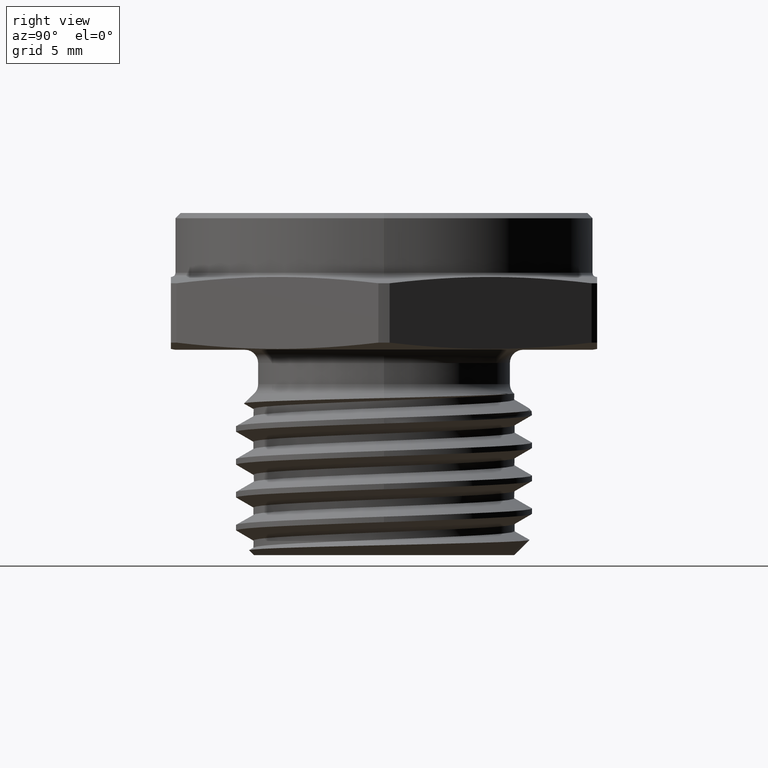
[diagram: clean part render]
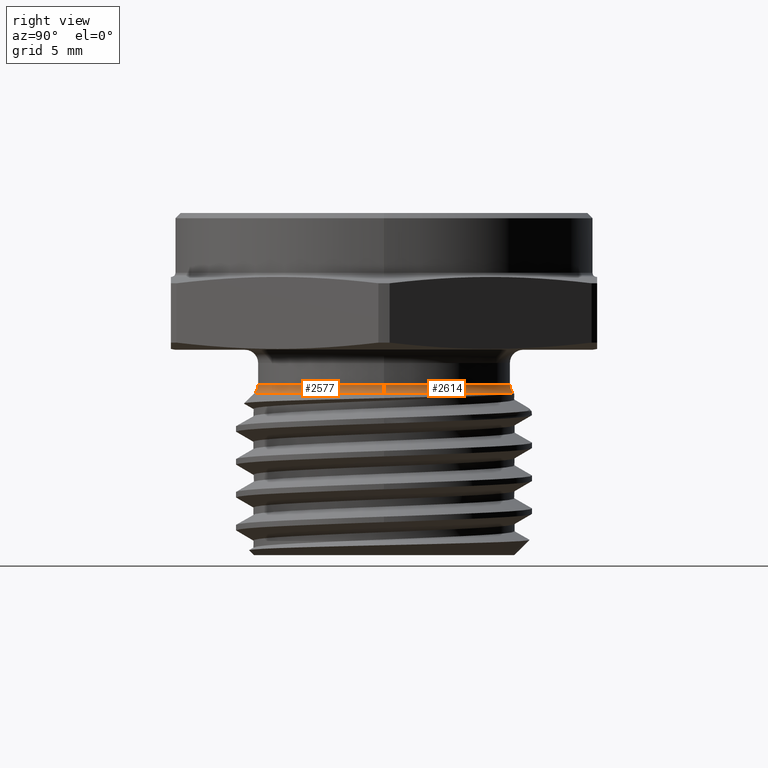
[diagram: same view with one multi-face feature highlighted, each face labeled with its STEP entity id]
A machine part, right view. The highlighted faces form ONE feature: a constant-radius fillet chain: 2 tangent blend faces with common blend radius 0.635 mm. The faces share edges in the B-rep.
Their STEP definitions:
[1] entity #2577 (Torus):
#247 = CARTESIAN_POINT ( 'NONE',  ( 0.0000000000000000000, 0.0000000000000000000, -0.06532233047033626800 ) ) ;
#248 = DIRECTION ( 'NONE',  ( -0.0000000000000000000, -0.0000000000000000000, 1.000000000000000000 ) ) ;
#249 = DIRECTION ( 'NONE',  ( 1.000000000000000000, 0.0000000000000000000, 0.0000000000000000000 ) ) ;
#251 = CARTESIAN_POINT ( 'NONE',  ( -0.2655000000000000100, 3.251437251736223000E-017, -0.06532233047033626800 ) ) ;
#252 = DIRECTION ( 'NONE',  ( 1.224646799147353200E-016, 1.000000000000000000, 0.0000000000000000000 ) ) ;
#253 = DIRECTION ( 'NONE',  ( -1.000000000000000000, 1.224646799147353200E-016, 0.0000000000000000000 ) ) ;
#254 = CARTESIAN_POINT ( 'NONE',  ( 0.0000000000000000000, 0.0000000000000000000, -0.08299999999999999000 ) ) ;
#255 = DIRECTION ( 'NONE',  ( -0.0000000000000000000, -0.0000000000000000000, 1.000000000000000000 ) ) ;
#256 = DIRECTION ( 'NONE',  ( 1.000000000000000000, 0.0000000000000000000, 0.0000000000000000000 ) ) ;
#258 = CARTESIAN_POINT ( 'NONE',  ( 0.2655000000000000100, 0.0000000000000000000, -0.06532233047033626800 ) ) ;
#259 = DIRECTION ( 'NONE',  ( 0.0000000000000000000, -1.000000000000000000, 0.0000000000000000000 ) ) ;
#260 = DIRECTION ( 'NONE',  ( 0.0000000000000000000, 0.0000000000000000000, -1.000000000000000000 ) ) ;
#322 = ORIENTED_EDGE ( 'NONE', *, *, #1204, .F. ) ;
#325 = ORIENTED_EDGE ( 'NONE', *, *, #1203, .T. ) ;
#356 = ORIENTED_EDGE ( 'NONE', *, *, #1202, .T. ) ;
#357 = ORIENTED_EDGE ( 'NONE', *, *, #1201, .F. ) ;
#635 = CIRCLE ( 'NONE', #913, 0.2404999999999999900 ) ;
#639 = CIRCLE ( 'NONE', #915, 0.2478223304703363900 ) ;
#641 = CIRCLE ( 'NONE', #914, 0.02499999999999997400 ) ;
#643 = CIRCLE ( 'NONE', #916, 0.02499999999999999100 ) ;
#703 = FACE_OUTER_BOUND ( 'NONE', #1290, .T. ) ;
#710 = TOROIDAL_SURFACE ( 'NONE', #951, 0.2655000000000000100, 0.02499999999999998400 ) ;
#913 = AXIS2_PLACEMENT_3D ( 'NONE', #247, #248, #249 ) ;
#914 = AXIS2_PLACEMENT_3D ( 'NONE', #251, #252, #253 ) ;
#915 = AXIS2_PLACEMENT_3D ( 'NONE', #254, #255, #256 ) ;
#916 = AXIS2_PLACEMENT_3D ( 'NONE', #258, #259, #260 ) ;
#951 = AXIS2_PLACEMENT_3D ( 'NONE', #1708, #1707, #1710 ) ;
#1201 = EDGE_CURVE ( 'NONE', #1314, #1343, #635, .T. ) ;
#1202 = EDGE_CURVE ( 'NONE', #1314, #1322, #641, .T. ) ;
#1203 = EDGE_CURVE ( 'NONE', #1322, #1373, #639, .T. ) ;
#1204 = EDGE_CURVE ( 'NONE', #1343, #1373, #643, .T. ) ;
#1290 = EDGE_LOOP ( 'NONE', ( #357, #356, #325, #322 ) ) ;
#1314 = VERTEX_POINT ( 'NONE', #1603 ) ;
#1322 = VERTEX_POINT ( 'NONE', #1605 ) ;
#1343 = VERTEX_POINT ( 'NONE', #1619 ) ;
#1373 = VERTEX_POINT ( 'NONE', #1631 ) ;
#1603 = CARTESIAN_POINT ( 'NONE',  ( -0.2404999999999999900, 2.990111894813367500E-017, -0.06532233047033626800 ) ) ;
#1605 = CARTESIAN_POINT ( 'NONE',  ( -0.2478223304703363900, 0.0000000000000000000, -0.08299999999999999000 ) ) ;
#1619 = CARTESIAN_POINT ( 'NONE',  ( 0.2404999999999999900, 0.0000000000000000000, -0.06532233047033626800 ) ) ;
#1631 = CARTESIAN_POINT ( 'NONE',  ( 0.2478223304703363900, 3.239633680139640600E-017, -0.08299999999999999000 ) ) ;
#1707 = DIRECTION ( 'NONE',  ( -0.0000000000000000000, -0.0000000000000000000, 1.000000000000000000 ) ) ;
#1708 = CARTESIAN_POINT ( 'NONE',  ( 0.0000000000000000000, 0.0000000000000000000, -0.06532233047033626800 ) ) ;
#1710 = DIRECTION ( 'NONE',  ( 1.000000000000000000, 0.0000000000000000000, 0.0000000000000000000 ) ) ;
#2577 = ADVANCED_FACE ( 'NONE', ( #703 ), #710, .F. ) ;
[2] entity #2614 (Torus):
#241 = CARTESIAN_POINT ( 'NONE',  ( 0.0000000000000000000, 0.0000000000000000000, -0.06532233047033626800 ) ) ;
#242 = DIRECTION ( 'NONE',  ( -0.0000000000000000000, -0.0000000000000000000, 1.000000000000000000 ) ) ;
#243 = DIRECTION ( 'NONE',  ( 1.000000000000000000, 0.0000000000000000000, 0.0000000000000000000 ) ) ;
#251 = CARTESIAN_POINT ( 'NONE',  ( -0.2655000000000000100, 3.251437251736223000E-017, -0.06532233047033626800 ) ) ;
#252 = DIRECTION ( 'NONE',  ( 1.224646799147353200E-016, 1.000000000000000000, 0.0000000000000000000 ) ) ;
#253 = DIRECTION ( 'NONE',  ( -1.000000000000000000, 1.224646799147353200E-016, 0.0000000000000000000 ) ) ;
#258 = CARTESIAN_POINT ( 'NONE',  ( 0.2655000000000000100, 0.0000000000000000000, -0.06532233047033626800 ) ) ;
#259 = DIRECTION ( 'NONE',  ( 0.0000000000000000000, -1.000000000000000000, 0.0000000000000000000 ) ) ;
#260 = DIRECTION ( 'NONE',  ( 0.0000000000000000000, 0.0000000000000000000, -1.000000000000000000 ) ) ;
#262 = CARTESIAN_POINT ( 'NONE',  ( 0.0000000000000000000, 0.0000000000000000000, -0.08299999999999999000 ) ) ;
#263 = DIRECTION ( 'NONE',  ( -0.0000000000000000000, -0.0000000000000000000, 1.000000000000000000 ) ) ;
#264 = DIRECTION ( 'NONE',  ( 1.000000000000000000, 0.0000000000000000000, 0.0000000000000000000 ) ) ;
#464 = ORIENTED_EDGE ( 'NONE', *, *, #1202, .F. ) ;
#465 = ORIENTED_EDGE ( 'NONE', *, *, #1197, .F. ) ;
#466 = ORIENTED_EDGE ( 'NONE', *, *, #1204, .T. ) ;
#467 = ORIENTED_EDGE ( 'NONE', *, *, #1205, .T. ) ;
#556 = EDGE_LOOP ( 'NONE', ( #464, #465, #466, #467 ) ) ;
#632 = CIRCLE ( 'NONE', #911, 0.2404999999999999900 ) ;
#641 = CIRCLE ( 'NONE', #914, 0.02499999999999997400 ) ;
#642 = CIRCLE ( 'NONE', #917, 0.2478223304703363900 ) ;
#643 = CIRCLE ( 'NONE', #916, 0.02499999999999999100 ) ;
#780 = TOROIDAL_SURFACE ( 'NONE', #991, 0.2655000000000000100, 0.02499999999999998400 ) ;
#781 = FACE_OUTER_BOUND ( 'NONE', #556, .T. ) ;
#911 = AXIS2_PLACEMENT_3D ( 'NONE', #241, #242, #243 ) ;
#914 = AXIS2_PLACEMENT_3D ( 'NONE', #251, #252, #253 ) ;
#916 = AXIS2_PLACEMENT_3D ( 'NONE', #258, #259, #260 ) ;
#917 = AXIS2_PLACEMENT_3D ( 'NONE', #262, #263, #264 ) ;
#991 = AXIS2_PLACEMENT_3D ( 'NONE', #1827, #1826, #1829 ) ;
#1197 = EDGE_CURVE ( 'NONE', #1343, #1314, #632, .T. ) ;
#1202 = EDGE_CURVE ( 'NONE', #1314, #1322, #641, .T. ) ;
#1204 = EDGE_CURVE ( 'NONE', #1343, #1373, #643, .T. ) ;
#1205 = EDGE_CURVE ( 'NONE', #1373, #1322, #642, .T. ) ;
#1314 = VERTEX_POINT ( 'NONE', #1603 ) ;
#1322 = VERTEX_POINT ( 'NONE', #1605 ) ;
#1343 = VERTEX_POINT ( 'NONE', #1619 ) ;
#1373 = VERTEX_POINT ( 'NONE', #1631 ) ;
#1603 = CARTESIAN_POINT ( 'NONE',  ( -0.2404999999999999900, 2.990111894813367500E-017, -0.06532233047033626800 ) ) ;
#1605 = CARTESIAN_POINT ( 'NONE',  ( -0.2478223304703363900, 0.0000000000000000000, -0.08299999999999999000 ) ) ;
#1619 = CARTESIAN_POINT ( 'NONE',  ( 0.2404999999999999900, 0.0000000000000000000, -0.06532233047033626800 ) ) ;
#1631 = CARTESIAN_POINT ( 'NONE',  ( 0.2478223304703363900, 3.239633680139640600E-017, -0.08299999999999999000 ) ) ;
#1826 = DIRECTION ( 'NONE',  ( -0.0000000000000000000, -0.0000000000000000000, 1.000000000000000000 ) ) ;
#1827 = CARTESIAN_POINT ( 'NONE',  ( 0.0000000000000000000, 0.0000000000000000000, -0.06532233047033626800 ) ) ;
#1829 = DIRECTION ( 'NONE',  ( 1.000000000000000000, 0.0000000000000000000, 0.0000000000000000000 ) ) ;
#2614 = ADVANCED_FACE ( 'NONE', ( #781 ), #780, .F. ) ;